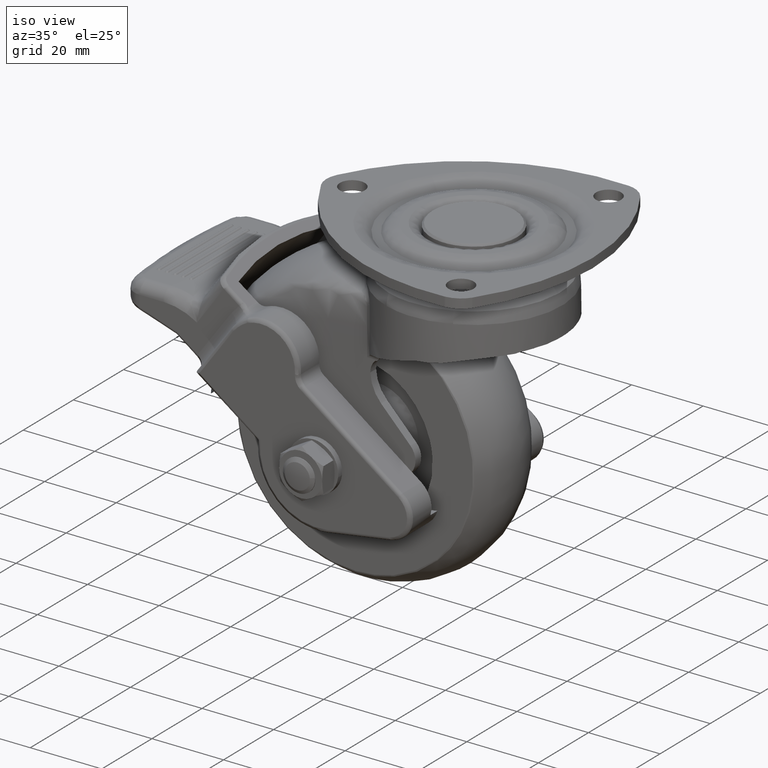
[diagram: clean part render]
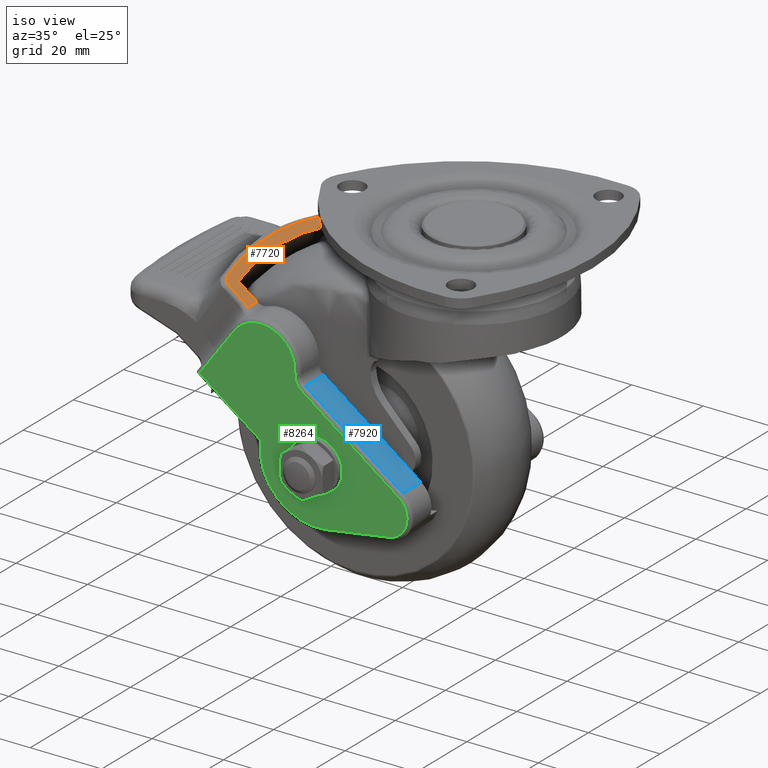
[diagram: same view with three faces highlighted in distinct colors, each labeled with its STEP entity id]
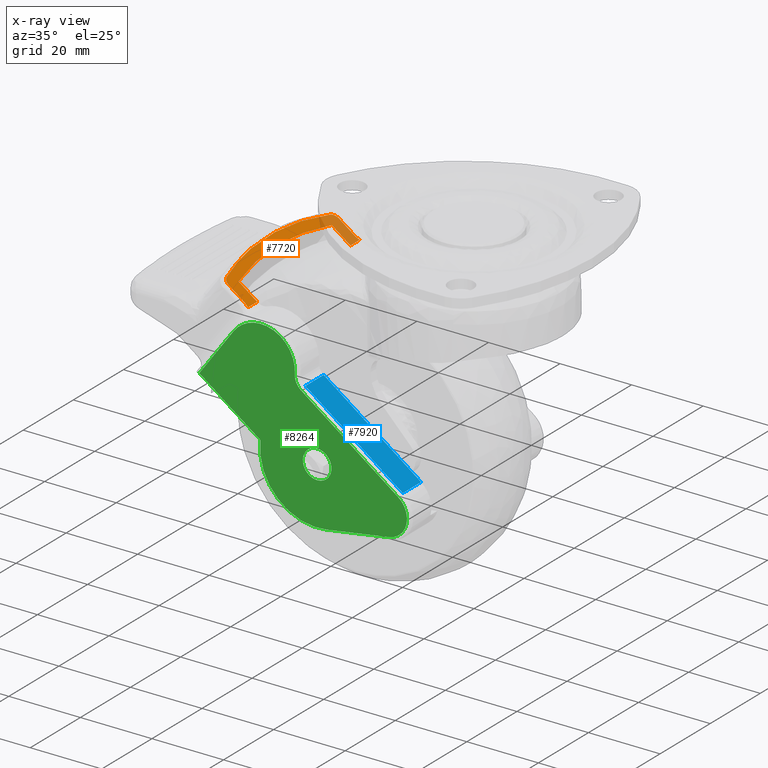
[diagram: x-ray of the same camera — body ghosted, the three highlighted faces saturated]
A machine part, iso view with three faces highlighted in distinct colors.
The next image is the same camera in x-ray (body ghosted, the three faces saturated) — at least one of them is partly hidden behind the body in this view.
Their STEP definitions:

[orange] entity #7720 — the highlighted face is a freeform B-spline surface patch.
#4313=CARTESIAN_POINT('',(-47.571880902895103,22.336881559443700,-25.649719299306849));
#4314=VERTEX_POINT('',#4313);
#4343=CARTESIAN_POINT('',(-48.912498024131800,22.0,-24.675703984646098));
#4344=VERTEX_POINT('',#4343);
#4360=CARTESIAN_POINT('',(-47.571880902895103,22.336881559443700,-25.649719299306849));
#4361=CARTESIAN_POINT('',(-47.625150855703872,22.308998705962640,-25.611016414624078));
#4362=CARTESIAN_POINT('',(-47.678946544017357,22.282796141013730,-25.571931560753409));
#4363=CARTESIAN_POINT('',(-47.787587553194001,22.233745712330141,-25.492999250355449));
#4364=CARTESIAN_POINT('',(-47.842383926741228,22.210927180760649,-25.453187356133469));
#4365=CARTESIAN_POINT('',(-48.007245844094122,22.147897573771619,-25.333408166563000));
#4366=CARTESIAN_POINT('',(-48.118128326562207,22.112937339444969,-25.252847330556438));
#4367=CARTESIAN_POINT('',(-48.453632768078698,22.028752565600161,-25.009089094892321));
#4368=CARTESIAN_POINT('',(-48.681080805075439,22.000000000000011,-24.843838429497278));
#4369=CARTESIAN_POINT('',(-48.912498024131800,22.0,-24.675703984646098));
#4370=B_SPLINE_CURVE_WITH_KNOTS('',3,(#4360,#4361,#4362,#4363,#4364,#4365,#4366,#4367,#4368,#4369),.UNSPECIFIED.,.F.,.U.,(4,2,2,2,4),(0.0,0.125000000000002,0.250000000000004,0.499999999999999,1.0),.UNSPECIFIED.);
#4371=EDGE_CURVE('',#4314,#4344,#4370,.T.);
#4392=CARTESIAN_POINT('',(-53.130463232639997,22.0,-21.611172997600850));
#4393=VERTEX_POINT('',#4392);
#4409=CARTESIAN_POINT('',(-48.912498024131800,22.0,-24.675703984646098));
#4410=CARTESIAN_POINT('',(-53.130463232639997,22.0,-21.611172997600850));
#4411=QUASI_UNIFORM_CURVE('',1,(#4409,#4410),.UNSPECIFIED.,.F.,.U.);
#4412=EDGE_CURVE('',#4344,#4393,#4411,.T.);
#4577=CARTESIAN_POINT('',(-54.670308524667902,20.614203320758349,-20.492409949684649));
#4578=VERTEX_POINT('',#4577);
#4594=CARTESIAN_POINT('',(-53.130463232640011,22.0,-21.611172997600871));
#4595=CARTESIAN_POINT('',(-54.308524081848390,21.999999999998906,-20.755261723192632));
#4596=CARTESIAN_POINT('',(-54.670308524667988,20.614203320758389,-20.492409949684589));
#4604=(BOUNDED_CURVE()B_SPLINE_CURVE(2,(#4594,#4595,#4596),.UNSPECIFIED.,.F.,.U.)CURVE()GEOMETRIC_REPRESENTATION_ITEM()QUASI_UNIFORM_CURVE()RATIONAL_B_SPLINE_CURVE((1.0,0.808424906957940,1.0))REPRESENTATION_ITEM(''));
#4605=EDGE_CURVE('',#4393,#4578,#4604,.T.);
#4643=CARTESIAN_POINT('',(-54.670308524667902,-20.614203320758151,-20.492409949684600));
#4644=VERTEX_POINT('',#4643);
#4660=CARTESIAN_POINT('',(-54.670308524667860,20.614203320758360,-20.492409949684610));
#4661=CARTESIAN_POINT('',(-60.051976827305388,1.214306E-013,-16.582399207499069));
#4662=CARTESIAN_POINT('',(-54.670308524667753,-20.614203320758069,-20.492409949684681));
#4670=(BOUNDED_CURVE()B_SPLINE_CURVE(2,(#4660,#4661,#4662),.UNSPECIFIED.,.F.,.U.)CURVE()GEOMETRIC_REPRESENTATION_ITEM()QUASI_UNIFORM_CURVE()RATIONAL_B_SPLINE_CURVE((1.0,0.951676715167697,1.0))REPRESENTATION_ITEM(''));
#4671=EDGE_CURVE('',#4578,#4644,#4670,.T.);
#4722=CARTESIAN_POINT('',(-53.130463232638697,-22.0,-21.611172997601798));
#4723=VERTEX_POINT('',#4722);
#4737=CARTESIAN_POINT('',(-54.670308524667952,-20.614203320758168,-20.492409949684600));
#4738=CARTESIAN_POINT('',(-54.308524081848141,-22.0,-20.755261723192788));
#4739=CARTESIAN_POINT('',(-53.130463232638697,-22.0,-21.611172997601798));
#4747=(BOUNDED_CURVE()B_SPLINE_CURVE(2,(#4737,#4738,#4739),.UNSPECIFIED.,.F.,.U.)CURVE()GEOMETRIC_REPRESENTATION_ITEM()QUASI_UNIFORM_CURVE()RATIONAL_B_SPLINE_CURVE((1.0,0.808424906957685,1.0))REPRESENTATION_ITEM(''));
#4748=EDGE_CURVE('',#4644,#4723,#4747,.T.);
#4797=CARTESIAN_POINT('',(-48.912498024131800,-22.0,-24.675703984646098));
#4798=VERTEX_POINT('',#4797);
#4812=CARTESIAN_POINT('',(-53.130463232638697,-22.0,-21.611172997601798));
#4813=CARTESIAN_POINT('',(-48.912498024131800,-22.0,-24.675703984646098));
#4814=QUASI_UNIFORM_CURVE('',1,(#4812,#4813),.UNSPECIFIED.,.F.,.U.);
#4815=EDGE_CURVE('',#4723,#4798,#4814,.T.);
#4876=CARTESIAN_POINT('',(-47.571880902895103,-22.336881559443398,-25.649719299306849));
#4877=VERTEX_POINT('',#4876);
#4891=CARTESIAN_POINT('',(-48.912498024131800,-22.0,-24.675703984646098));
#4892=CARTESIAN_POINT('',(-48.854646536098294,-22.0,-24.717735549384422));
#4893=CARTESIAN_POINT('',(-48.796841717197481,-22.001815217253242,-24.759733207014399));
#4894=CARTESIAN_POINT('',(-48.681325099329008,-22.009063704613069,-24.843660939339561));
#4895=CARTESIAN_POINT('',(-48.623668148464411,-22.014500405071161,-24.885551164556869));
#4896=CARTESIAN_POINT('',(-48.451982927470993,-22.036056730460292,-25.010287774211861));
#4897=CARTESIAN_POINT('',(-48.338865091745483,-22.057427391581221,-25.092472689362189));
#4898=CARTESIAN_POINT('',(-48.003419774997312,-22.141970224455491,-25.336187968369330));
#4899=CARTESIAN_POINT('',(-47.784958072365612,-22.225351528286151,-25.494909679929940));
#4900=CARTESIAN_POINT('',(-47.571880902895103,-22.336881559443398,-25.649719299306849));
#4901=B_SPLINE_CURVE_WITH_KNOTS('',3,(#4891,#4892,#4893,#4894,#4895,#4896,#4897,#4898,#4899,#4900),.UNSPECIFIED.,.F.,.U.,(4,2,2,2,4),(0.0,0.124999999999999,0.249999999999998,0.499999999999996,1.0),.UNSPECIFIED.);
#4902=EDGE_CURVE('',#4798,#4877,#4901,.T.);
#5077=CARTESIAN_POINT('',(-47.571880902895103,-18.599999999999749,-25.649719299306849));
#5078=VERTEX_POINT('',#5077);
#5092=CARTESIAN_POINT('',(-47.571880902895103,-22.336881559443398,-25.649719299306849));
#5093=CARTESIAN_POINT('',(-47.571880902895103,-18.599999999999749,-25.649719299306849));
#5094=QUASI_UNIFORM_CURVE('',1,(#5092,#5093),.UNSPECIFIED.,.F.,.U.);
#5095=EDGE_CURVE('',#4877,#5078,#5094,.T.);
#5123=CARTESIAN_POINT('',(-47.571880902895103,18.600000000000001,-25.649719299306849));
#5124=VERTEX_POINT('',#5123);
#5125=CARTESIAN_POINT('',(-47.571880902895103,18.600000000000001,-25.649719299306849));
#5126=CARTESIAN_POINT('',(-47.571880902895103,22.336881559443700,-25.649719299306849));
#5127=QUASI_UNIFORM_CURVE('',1,(#5125,#5126),.UNSPECIFIED.,.F.,.U.);
#5128=EDGE_CURVE('',#5124,#4314,#5127,.T.);
#7458=CARTESIAN_POINT('',(-52.773466633397597,18.600000000000001,-21.870546199273551));
#7459=VERTEX_POINT('',#7458);
#7467=CARTESIAN_POINT('',(-52.773466633397597,-18.599999999999749,-21.870546199273551));
#7468=VERTEX_POINT('',#7467);
#7469=CARTESIAN_POINT('',(-52.773466633397597,18.600000000000001,-21.870546199273551));
#7470=CARTESIAN_POINT('',(-57.044167395097197,1.214306E-013,-18.767700591576435));
#7471=CARTESIAN_POINT('',(-52.773466633397597,-18.599999999999749,-21.870546199273551));
#7479=(BOUNDED_CURVE()B_SPLINE_CURVE(2,(#7469,#7470,#7471),.UNSPECIFIED.,.F.,.U.)CURVE()GEOMETRIC_REPRESENTATION_ITEM()QUASI_UNIFORM_CURVE()RATIONAL_B_SPLINE_CURVE((1.0,0.962006222287340,1.0))REPRESENTATION_ITEM(''));
#7480=EDGE_CURVE('',#7459,#7468,#7479,.T.);
#7693=CARTESIAN_POINT('',(-57.780163641561778,-24.568336360010719,-18.232968038755939));
#7694=CARTESIAN_POINT('',(-47.086234940935483,-24.568336360010719,-26.002561730571280));
#7695=CARTESIAN_POINT('',(-57.780163641561778,24.568337158840151,-18.232968038755939));
#7696=CARTESIAN_POINT('',(-47.086234940935483,24.568337158840151,-26.002561730571280));
#7697=B_SPLINE_SURFACE_WITH_KNOTS('',1,1,((#7693,#7695),(#7694,#7696)),.UNSPECIFIED.,.F.,.F.,.U.,(2,2),(2,2),(0.0,13.218422643794360),(0.0,49.136673518850870),.UNSPECIFIED.);
#7698=ORIENTED_EDGE('',*,*,#5128,.T.);
#7699=ORIENTED_EDGE('',*,*,#4371,.T.);
#7700=ORIENTED_EDGE('',*,*,#4412,.T.);
#7701=ORIENTED_EDGE('',*,*,#4605,.T.);
#7702=ORIENTED_EDGE('',*,*,#4671,.T.);
#7703=ORIENTED_EDGE('',*,*,#4748,.T.);
#7704=ORIENTED_EDGE('',*,*,#4815,.T.);
#7705=ORIENTED_EDGE('',*,*,#4902,.T.);
#7706=ORIENTED_EDGE('',*,*,#5095,.T.);
#7707=CARTESIAN_POINT('',(-47.571880902895103,-18.599999999999749,-25.649719299306849));
#7708=CARTESIAN_POINT('',(-52.773466633397597,-18.599999999999749,-21.870546199273551));
#7709=QUASI_UNIFORM_CURVE('',1,(#7707,#7708),.UNSPECIFIED.,.F.,.U.);
#7710=EDGE_CURVE('',#5078,#7468,#7709,.T.);
#7711=ORIENTED_EDGE('',*,*,#7710,.T.);
#7712=ORIENTED_EDGE('',*,*,#7480,.F.);
#7713=CARTESIAN_POINT('',(-52.773466633397597,18.600000000000001,-21.870546199273551));
#7714=CARTESIAN_POINT('',(-47.571880902895103,18.600000000000001,-25.649719299306849));
#7715=QUASI_UNIFORM_CURVE('',1,(#7713,#7714),.UNSPECIFIED.,.F.,.U.);
#7716=EDGE_CURVE('',#7459,#5124,#7715,.T.);
#7717=ORIENTED_EDGE('',*,*,#7716,.T.);
#7718=EDGE_LOOP('',(#7698,#7699,#7700,#7701,#7702,#7703,#7704,#7705,#7706,#7711,#7712,#7717));
#7719=FACE_OUTER_BOUND('',#7718,.T.);
#7720=ADVANCED_FACE('',(#7719),#7697,.T.);

[blue] entity #7920 — the highlighted face is a freeform B-spline surface patch.
#3772=CARTESIAN_POINT('',(-28.993354756877402,-25.899999999999999,-39.147807936221497));
#3773=VERTEX_POINT('',#3772);
#3893=CARTESIAN_POINT('',(-1.761862000000095,-25.899999999999999,-58.932644953096698));
#3894=VERTEX_POINT('',#3893);
#3908=CARTESIAN_POINT('',(-28.993354756877402,-25.899999999999999,-39.147807936221497));
#3909=CARTESIAN_POINT('',(-1.761862000000095,-25.899999999999999,-58.932644953096698));
#3910=QUASI_UNIFORM_CURVE('',1,(#3908,#3909),.UNSPECIFIED.,.F.,.U.);
#3911=EDGE_CURVE('',#3773,#3894,#3910,.T.);
#7827=CARTESIAN_POINT('',(-1.761862099552860,-18.600000000000001,-58.932645090119301));
#7828=VERTEX_POINT('',#7827);
#7829=CARTESIAN_POINT('',(-1.761862099552860,-18.600000000000001,-58.932645090119301));
#7830=CARTESIAN_POINT('',(-1.761862000000095,-25.899999999999999,-58.932644953096698));
#7831=QUASI_UNIFORM_CURVE('',1,(#7829,#7830),.UNSPECIFIED.,.F.,.U.);
#7832=EDGE_CURVE('',#7828,#3894,#7831,.T.);
#7899=CARTESIAN_POINT('',(-0.401649496237054,-26.264634548607400,-59.920897145964467));
#7900=CARTESIAN_POINT('',(-30.353568570004459,-26.264634548607390,-38.159554985559232));
#7901=CARTESIAN_POINT('',(-0.401649496237054,-18.235365386125519,-59.920897145964467));
#7902=CARTESIAN_POINT('',(-30.353568570004459,-18.235365386125519,-38.159554985559232));
#7903=B_SPLINE_SURFACE_WITH_KNOTS('',1,1,((#7899,#7901),(#7900,#7902)),.UNSPECIFIED.,.F.,.F.,.U.,(2,2),(2,2),(0.0,37.022607536797587),(0.0,8.029269162481882),.UNSPECIFIED.);
#7904=CARTESIAN_POINT('',(-28.993354756877402,-18.600000000000001,-39.147808129735601));
#7905=VERTEX_POINT('',#7904);
#7906=CARTESIAN_POINT('',(-28.993354756877402,-18.600000000000001,-39.147808129735601));
#7907=CARTESIAN_POINT('',(-28.993354756877402,-25.899999999999999,-39.147807936221497));
#7908=QUASI_UNIFORM_CURVE('',1,(#7906,#7907),.UNSPECIFIED.,.F.,.U.);
#7909=EDGE_CURVE('',#7905,#3773,#7908,.T.);
#7910=ORIENTED_EDGE('',*,*,#7909,.T.);
#7911=ORIENTED_EDGE('',*,*,#3911,.T.);
#7912=ORIENTED_EDGE('',*,*,#7832,.F.);
#7913=CARTESIAN_POINT('',(-1.761862099552860,-18.600000000000001,-58.932645090119301));
#7914=CARTESIAN_POINT('',(-28.993354756877402,-18.600000000000001,-39.147808129735601));
#7915=QUASI_UNIFORM_CURVE('',1,(#7913,#7914),.UNSPECIFIED.,.F.,.U.);
#7916=EDGE_CURVE('',#7828,#7905,#7915,.T.);
#7917=ORIENTED_EDGE('',*,*,#7916,.T.);
#7918=EDGE_LOOP('',(#7910,#7911,#7912,#7917));
#7919=FACE_OUTER_BOUND('',#7918,.T.);
#7920=ADVANCED_FACE('',(#7919),#7903,.F.);

[green] entity #8264 — the highlighted face is a freeform B-spline surface patch.
#282=CARTESIAN_POINT('',(-21.012329665077111,-26.899999999999999,-57.813836531795921));
#283=VERTEX_POINT('',#282);
#289=CARTESIAN_POINT('',(-24.999998999999999,-26.899999999999999,-53.500000148762297));
#290=VERTEX_POINT('',#289);
#291=CARTESIAN_POINT('',(-21.012329665077115,-26.899999999999999,-57.813836531795921));
#292=CARTESIAN_POINT('',(-20.999998999999995,-26.899999999999991,-57.657160576915793));
#293=CARTESIAN_POINT('',(-20.999998999999999,-26.899999999999999,-57.500000148762297));
#294=CARTESIAN_POINT('',(-20.999999000000003,-26.900000000000002,-53.500000148762290));
#295=CARTESIAN_POINT('',(-24.999998999999999,-26.899999999999999,-53.500000148762297));
#303=(BOUNDED_CURVE()B_SPLINE_CURVE(2,(#291,#292,#293,#294,#295),.UNSPECIFIED.,.F.,.U.)B_SPLINE_CURVE_WITH_KNOTS((3,2,3),(0.736331300622257,0.750000000000000,1.0),.UNSPECIFIED.)CURVE()GEOMETRIC_REPRESENTATION_ITEM()RATIONAL_B_SPLINE_CURVE((0.969723356149882,0.983986122569038,1.0,0.707106781186548,1.0))REPRESENTATION_ITEM(''));
#304=EDGE_CURVE('',#283,#290,#303,.T.);
#306=CARTESIAN_POINT('',(-28.987668334922891,-26.899999999999999,-57.186163765728672));
#307=VERTEX_POINT('',#306);
#308=CARTESIAN_POINT('',(-24.999998999999999,-26.899999999999999,-53.500000148762297));
#309=CARTESIAN_POINT('',(-28.697560966405430,-26.900000000000002,-53.500000148762297));
#310=CARTESIAN_POINT('',(-28.987668334922891,-26.899999999999995,-57.186163765728672));
#318=(BOUNDED_CURVE()B_SPLINE_CURVE(2,(#308,#309,#310),.UNSPECIFIED.,.F.,.U.)B_SPLINE_CURVE_WITH_KNOTS((3,3),(0.0,0.236331300622257),.UNSPECIFIED.)CURVE()GEOMETRIC_REPRESENTATION_ITEM()RATIONAL_B_SPLINE_CURVE((1.0,0.723120658617510,0.969723356149881))REPRESENTATION_ITEM(''));
#319=EDGE_CURVE('',#290,#307,#318,.T.);
#365=CARTESIAN_POINT('',(-24.999998999999999,-26.899999999999999,-61.500000148762297));
#366=VERTEX_POINT('',#365);
#367=CARTESIAN_POINT('',(-28.987668334922883,-26.900000000000002,-57.186163765728672));
#368=CARTESIAN_POINT('',(-28.999999000000006,-26.899999999999999,-57.342839720608808));
#369=CARTESIAN_POINT('',(-28.999998999999999,-26.899999999999999,-57.500000148762297));
#370=CARTESIAN_POINT('',(-28.999998999999999,-26.900000000000002,-61.500000148762290));
#371=CARTESIAN_POINT('',(-24.999998999999999,-26.899999999999999,-61.500000148762297));
#379=(BOUNDED_CURVE()B_SPLINE_CURVE(2,(#367,#368,#369,#370,#371),.UNSPECIFIED.,.F.,.U.)B_SPLINE_CURVE_WITH_KNOTS((3,2,3),(0.236331300622257,0.250000000000000,0.500000000000000),.UNSPECIFIED.)CURVE()GEOMETRIC_REPRESENTATION_ITEM()RATIONAL_B_SPLINE_CURVE((0.969723356149881,0.983986122569037,1.0,0.707106781186548,1.0))REPRESENTATION_ITEM(''));
#380=EDGE_CURVE('',#307,#366,#379,.T.);
#382=CARTESIAN_POINT('',(-24.999998999999999,-26.899999999999999,-61.500000148762297));
#383=CARTESIAN_POINT('',(-21.302437033594575,-26.900000000000006,-61.500000148762304));
#384=CARTESIAN_POINT('',(-21.012329665077107,-26.899999999999995,-57.813836531795921));
#392=(BOUNDED_CURVE()B_SPLINE_CURVE(2,(#382,#383,#384),.UNSPECIFIED.,.F.,.U.)B_SPLINE_CURVE_WITH_KNOTS((3,3),(0.500000000000000,0.736331300622257),.UNSPECIFIED.)CURVE()GEOMETRIC_REPRESENTATION_ITEM()RATIONAL_B_SPLINE_CURVE((1.0,0.723120658617510,0.969723356149882))REPRESENTATION_ITEM(''));
#393=EDGE_CURVE('',#366,#283,#392,.T.);
#3620=CARTESIAN_POINT('',(-31.218899202119552,-26.899999999999999,-36.422971862214951));
#3621=VERTEX_POINT('',#3620);
#3656=CARTESIAN_POINT('',(-44.292676837883903,-26.899999999999999,-26.924317074657001));
#3657=VERTEX_POINT('',#3656);
#3671=CARTESIAN_POINT('',(-31.218899202119552,-26.899999999999999,-36.422971862214951));
#3672=CARTESIAN_POINT('',(-30.824693828518473,-26.899999999999999,-31.142494672221929));
#3673=CARTESIAN_POINT('',(-35.108577359671251,-26.899999999999999,-28.030071320213011));
#3674=CARTESIAN_POINT('',(-39.392460890824033,-26.899999999999999,-24.917647968204090));
#3675=CARTESIAN_POINT('',(-44.292676837883903,-26.899999999999999,-26.924317074656980));
#3683=(BOUNDED_CURVE()B_SPLINE_CURVE(2,(#3671,#3672,#3673,#3674,#3675),.UNSPECIFIED.,.F.,.U.)B_SPLINE_CURVE_WITH_KNOTS((3,2,3),(0.0,0.500000000000000,1.0),.UNSPECIFIED.)CURVE()GEOMETRIC_REPRESENTATION_ITEM()RATIONAL_B_SPLINE_CURVE((1.0,0.873477503008753,1.0,0.873477503008753,1.0))REPRESENTATION_ITEM(''));
#3684=EDGE_CURVE('',#3621,#3657,#3683,.T.);
#3708=CARTESIAN_POINT('',(-44.370644708131351,-26.899999999999999,-26.955294667116299));
#3709=VERTEX_POINT('',#3708);
#3723=CARTESIAN_POINT('',(-44.292676837883903,-26.899999999999999,-26.924317074656990));
#3724=CARTESIAN_POINT('',(-44.331498332362600,-26.900000000000002,-26.940214719674742));
#3725=CARTESIAN_POINT('',(-44.370644708131358,-26.899999999999999,-26.955294667116291));
#3733=(BOUNDED_CURVE()B_SPLINE_CURVE(2,(#3723,#3724,#3725),.UNSPECIFIED.,.F.,.U.)CURVE()GEOMETRIC_REPRESENTATION_ITEM()QUASI_UNIFORM_CURVE()RATIONAL_B_SPLINE_CURVE((1.0,0.999945009425319,1.0))REPRESENTATION_ITEM(''));
#3734=EDGE_CURVE('',#3657,#3709,#3733,.T.);
#3770=CARTESIAN_POINT('',(-29.581140101191298,-26.899999999999999,-39.956825057253049));
#3771=VERTEX_POINT('',#3770);
#3801=CARTESIAN_POINT('',(-29.581140101191298,-26.899999999999999,-39.956825057253049));
#3802=CARTESIAN_POINT('',(-31.384880477583948,-26.899999999999999,-38.646330770809328));
#3803=CARTESIAN_POINT('',(-31.218899202119552,-26.899999999999999,-36.422971862214951));
#3811=(BOUNDED_CURVE()B_SPLINE_CURVE(2,(#3801,#3802,#3803),.UNSPECIFIED.,.F.,.U.)CURVE()GEOMETRIC_REPRESENTATION_ITEM()QUASI_UNIFORM_CURVE()RATIONAL_B_SPLINE_CURVE((1.0,0.873477494058543,1.0))REPRESENTATION_ITEM(''));
#3812=EDGE_CURVE('',#3771,#3621,#3811,.T.);
#3891=CARTESIAN_POINT('',(-2.349647336958845,-26.899999999999999,-59.741662095309898));
#3892=VERTEX_POINT('',#3891);
#3914=CARTESIAN_POINT('',(-2.349647336958845,-26.899999999999999,-59.741662095309898));
#3915=CARTESIAN_POINT('',(-29.581140101191298,-26.899999999999999,-39.956825057253049));
#3916=QUASI_UNIFORM_CURVE('',1,(#3914,#3915),.UNSPECIFIED.,.F.,.U.);
#3917=EDGE_CURVE('',#3892,#3771,#3916,.T.);
#3941=CARTESIAN_POINT('',(-48.379209843961902,-26.899999999999999,-30.131038166008651));
#3942=VERTEX_POINT('',#3941);
#3956=CARTESIAN_POINT('',(-44.370644708131358,-26.899999999999999,-26.955294667116281));
#3957=CARTESIAN_POINT('',(-46.818637857370348,-26.899999999999995,-27.983095123867169));
#3958=CARTESIAN_POINT('',(-48.379209843961902,-26.899999999999999,-30.131038166008651));
#3966=(BOUNDED_CURVE()B_SPLINE_CURVE(2,(#3956,#3957,#3958),.UNSPECIFIED.,.F.,.U.)CURVE()GEOMETRIC_REPRESENTATION_ITEM()QUASI_UNIFORM_CURVE()RATIONAL_B_SPLINE_CURVE((1.0,0.963104601796098,1.0))REPRESENTATION_ITEM(''));
#3967=EDGE_CURVE('',#3709,#3942,#3966,.T.);
#4009=CARTESIAN_POINT('',(-4.937752120854309,-26.899999999999999,-70.521894557987792));
#4010=VERTEX_POINT('',#4009);
#4042=CARTESIAN_POINT('',(-4.937752120854309,-26.899999999999999,-70.521894557987792));
#4043=CARTESIAN_POINT('',(-0.978038775019671,-26.900000000000006,-69.894737000460736));
#4044=CARTESIAN_POINT('',(-0.042139499152658,-26.899999999999999,-65.996436225946866));
#4045=CARTESIAN_POINT('',(0.893759776714354,-26.900000000000006,-62.098135451432995));
#4046=CARTESIAN_POINT('',(-2.349647336958819,-26.899999999999999,-59.741662095309863));
#4054=(BOUNDED_CURVE()B_SPLINE_CURVE(2,(#4042,#4043,#4044,#4045,#4046),.UNSPECIFIED.,.F.,.U.)B_SPLINE_CURVE_WITH_KNOTS((3,2,3),(0.0,0.500000000000000,1.0),.UNSPECIFIED.)CURVE()GEOMETRIC_REPRESENTATION_ITEM()RATIONAL_B_SPLINE_CURVE((1.0,0.831469616574143,1.0,0.831469616574143,1.0))REPRESENTATION_ITEM(''));
#4055=EDGE_CURVE('',#4010,#3892,#4054,.T.);
#4080=CARTESIAN_POINT('',(-57.901330500701803,-26.899999999999999,-43.237114378794047));
#4081=VERTEX_POINT('',#4080);
#4095=CARTESIAN_POINT('',(-48.379209843961902,-26.899999999999999,-30.131038166008651));
#4096=CARTESIAN_POINT('',(-57.901330500701803,-26.899999999999999,-43.237114378794047));
#4097=QUASI_UNIFORM_CURVE('',1,(#4095,#4096),.UNSPECIFIED.,.F.,.U.);
#4098=EDGE_CURVE('',#3942,#4081,#4097,.T.);
#4118=CARTESIAN_POINT('',(-22.497048484991499,-26.899999999999999,-73.303013390840590));
#4119=VERTEX_POINT('',#4118);
#4141=CARTESIAN_POINT('',(-22.497048484991499,-26.899999999999999,-73.303013390840590));
#4142=CARTESIAN_POINT('',(-4.937752120854309,-26.899999999999999,-70.521894557987792));
#4143=QUASI_UNIFORM_CURVE('',1,(#4141,#4142),.UNSPECIFIED.,.F.,.U.);
#4144=EDGE_CURVE('',#4119,#4010,#4143,.T.);
#4172=CARTESIAN_POINT('',(-40.886666313992698,-26.899999999999999,-55.598991423960094));
#4173=VERTEX_POINT('',#4172);
#4205=CARTESIAN_POINT('',(-57.901330500701803,-26.899999999999999,-43.237114378794047));
#4206=CARTESIAN_POINT('',(-40.886666313992698,-26.899999999999999,-55.598991423960094));
#4207=QUASI_UNIFORM_CURVE('',1,(#4205,#4206),.UNSPECIFIED.,.F.,.U.);
#4208=EDGE_CURVE('',#4081,#4173,#4207,.T.);
#4231=CARTESIAN_POINT('',(-40.886666313992677,-26.899999999999999,-55.598991423960094));
#4232=CARTESIAN_POINT('',(-41.832648039056565,-26.900000000000006,-63.504529865731641));
#4233=CARTESIAN_POINT('',(-36.096803769828703,-26.899999999999999,-69.026532219737675));
#4234=CARTESIAN_POINT('',(-30.360959500600849,-26.900000000000006,-74.548534573743723));
#4235=CARTESIAN_POINT('',(-22.497048484991488,-26.899999999999999,-73.303013390840675));
#4243=(BOUNDED_CURVE()B_SPLINE_CURVE(2,(#4231,#4232,#4233,#4234,#4235),.UNSPECIFIED.,.F.,.U.)B_SPLINE_CURVE_WITH_KNOTS((3,2,3),(0.0,0.500000000000000,1.0),.UNSPECIFIED.)CURVE()GEOMETRIC_REPRESENTATION_ITEM()RATIONAL_B_SPLINE_CURVE((1.0,0.895277521669337,1.0,0.895277521669337,1.0))REPRESENTATION_ITEM(''));
#4244=EDGE_CURVE('',#4173,#4119,#4243,.T.);
#8241=CARTESIAN_POINT('',(-60.799676625295042,-26.899999999999999,-23.855826580087729));
#8242=CARTESIAN_POINT('',(3.021989718324809,-26.899999999999999,-23.855826580087729));
#8243=CARTESIAN_POINT('',(-60.799676625295042,-26.899999999999999,-75.855363860056002));
#8244=CARTESIAN_POINT('',(3.021989718324809,-26.899999999999999,-75.855363860056002));
#8245=B_SPLINE_SURFACE_WITH_KNOTS('',1,1,((#8241,#8243),(#8242,#8244)),.UNSPECIFIED.,.F.,.F.,.U.,(2,2),(2,2),(0.0,63.821666343619853),(0.0,51.999537279968273),.UNSPECIFIED.);
#8246=ORIENTED_EDGE('',*,*,#3917,.T.);
#8247=ORIENTED_EDGE('',*,*,#3812,.T.);
#8248=ORIENTED_EDGE('',*,*,#3684,.T.);
#8249=ORIENTED_EDGE('',*,*,#3734,.T.);
#8250=ORIENTED_EDGE('',*,*,#3967,.T.);
#8251=ORIENTED_EDGE('',*,*,#4098,.T.);
#8252=ORIENTED_EDGE('',*,*,#4208,.T.);
#8253=ORIENTED_EDGE('',*,*,#4244,.T.);
#8254=ORIENTED_EDGE('',*,*,#4144,.T.);
#8255=ORIENTED_EDGE('',*,*,#4055,.T.);
#8256=EDGE_LOOP('',(#8246,#8247,#8248,#8249,#8250,#8251,#8252,#8253,#8254,#8255));
#8257=FACE_OUTER_BOUND('',#8256,.T.);
#8258=ORIENTED_EDGE('',*,*,#393,.F.);
#8259=ORIENTED_EDGE('',*,*,#380,.F.);
#8260=ORIENTED_EDGE('',*,*,#319,.F.);
#8261=ORIENTED_EDGE('',*,*,#304,.F.);
#8262=EDGE_LOOP('',(#8258,#8259,#8260,#8261));
#8263=FACE_BOUND('',#8262,.T.);
#8264=ADVANCED_FACE('',(#8257,#8263),#8245,.F.);